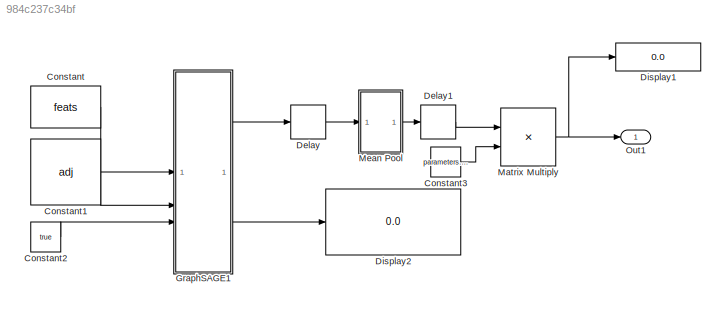
MODEL slx_984c237c34bf
KIND model
CONFIG AbsTol = auto
CONFIG EnableMultiTasking = off
CONFIG FixedStep = 1
CONFIG MaxStep = 1
CONFIG MinStep = auto
CONFIG RelTol = 1e-3
CONFIG SampleTimeConstraint = Unconstrained
CONFIG SolverName = FixedStepDiscrete
CONFIG StartTime = 0.0
CONFIG StopTime = 10
BLOCK [Constant] Constant
  OutDataTypeStr = fixdt(1,16,10)
  SampleTime = -1
  Value = feats
  VectorParams1D = off
BLOCK [Constant] Constant1
  OutDataTypeStr = boolean
  SampleTime = -1
  Value = adj
BLOCK [Constant] Constant2
  OutDataTypeStr = boolean
  SampleTime = -1
  Value = true
BLOCK [Constant] Constant3
  SampleTime = -1
  Value = parameters.classifier.weights
BLOCK [Delay] Delay
  DelayLength = 1
  InputPortMap = u0
BLOCK [Delay] Delay1
  DelayLength = 1
  InputPortMap = u0
BLOCK [Display] Display1
  Decimation = 1
BLOCK [Display] Display2
  Decimation = 1
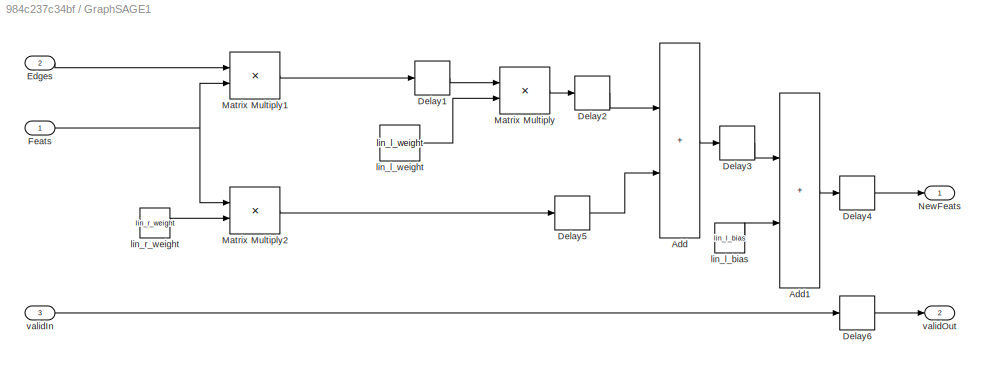
BLOCK [SubSystem] GraphSAGE1
BLOCK [Sum] GraphSAGE1/Add
  IconShape = rectangular
  OutDataTypeStr = Inherit: Same as first input
BLOCK [Sum] GraphSAGE1/Add1
  IconShape = rectangular
  OutDataTypeStr = Inherit: Same as first input
BLOCK [Delay] GraphSAGE1/Delay1
  DelayLength = 1
  InputPortMap = u0
BLOCK [Delay] GraphSAGE1/Delay2
  DelayLength = 1
  InputPortMap = u0
BLOCK [Delay] GraphSAGE1/Delay3
  DelayLength = 1
  InputPortMap = u0
BLOCK [Delay] GraphSAGE1/Delay4
  DelayLength = 1
  InputPortMap = u0
BLOCK [Delay] GraphSAGE1/Delay5
  InputPortMap = u0
BLOCK [Delay] GraphSAGE1/Delay6
  DelayLength = 4
  InputPortMap = u0
BLOCK [Inport] GraphSAGE1/Edges
  Port = 2
BLOCK [Inport] GraphSAGE1/Feats
BLOCK [Product] GraphSAGE1/Matrix Multiply
  Multiplication = Matrix(*)
  OutDataTypeStr = Inherit: Same as first input
BLOCK [Product] GraphSAGE1/Matrix Multiply1
  Multiplication = Matrix(*)
  OutDataTypeStr = fixdt(1,14,10)
BLOCK [Product] GraphSAGE1/Matrix Multiply2
  Multiplication = Matrix(*)
  OutDataTypeStr = Inherit: Same as first input
BLOCK [Outport] GraphSAGE1/NewFeats
BLOCK [Constant] GraphSAGE1/lin_l_bias
  OutDataTypeStr = fixdt(1,16,10)
  SampleTime = -1
  Value = lin_l_bias
  VectorParams1D = off
BLOCK [Constant] GraphSAGE1/lin_l_weight
  OutDataTypeStr = fixdt(1,16,10)
  SampleTime = -1
  Value = lin_l_weight
  VectorParams1D = off
BLOCK [Constant] GraphSAGE1/lin_r_weight
  OutDataTypeStr = fixdt(1,16,10)
  SampleTime = -1
  Value = lin_r_weight
  VectorParams1D = off
BLOCK [Inport] GraphSAGE1/validIn
  Port = 3
BLOCK [Outport] GraphSAGE1/validOut
  Port = 2
BLOCK [Product] Matrix Multiply
  Multiplication = Matrix(*)
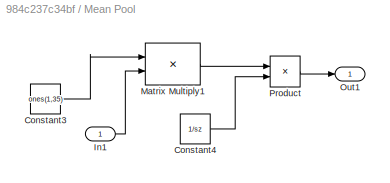
BLOCK [SubSystem] Mean Pool
BLOCK [Constant] Mean Pool/Constant3
  OutDataTypeStr = boolean
  SampleTime = -1
  Value = ones(1,35)
  VectorParams1D = off
BLOCK [Constant] Mean Pool/Constant4
  OutDataTypeStr = fixdt(1,13,10)
  SampleTime = -1
  Value = 1/sz
BLOCK [Inport] Mean Pool/In1
BLOCK [Product] Mean Pool/Matrix Multiply1
  Multiplication = Matrix(*)
BLOCK [Outport] Mean Pool/Out1
BLOCK [Product] Mean Pool/Product
  OutDataTypeStr = Inherit: Same as first input
BLOCK [Outport] Out1
LINE Constant1:1 -> GraphSAGE1:2
LINE Constant2:1 -> GraphSAGE1:3
LINE Constant3:1 -> Matrix Multiply:2
LINE Constant:1 -> GraphSAGE1:1
LINE Delay1:1 -> Matrix Multiply:1
LINE Delay:1 -> Mean Pool:1
LINE GraphSAGE1/Add1:1 -> GraphSAGE1/Delay4:1
LINE GraphSAGE1/Add:1 -> GraphSAGE1/Delay3:1
LINE GraphSAGE1/Delay1:1 -> GraphSAGE1/Matrix Multiply:1
LINE GraphSAGE1/Delay2:1 -> GraphSAGE1/Add:1
LINE GraphSAGE1/Delay3:1 -> GraphSAGE1/Add1:1
LINE GraphSAGE1/Delay4:1 -> GraphSAGE1/NewFeats:1
LINE GraphSAGE1/Delay5:1 -> GraphSAGE1/Add:2
LINE GraphSAGE1/Delay6:1 -> GraphSAGE1/validOut:1
LINE GraphSAGE1/Edges:1 -> GraphSAGE1/Matrix Multiply1:1
NET GraphSAGE1/Feats:1 -> GraphSAGE1/Matrix Multiply1:2, GraphSAGE1/Matrix Multiply2:1
LINE GraphSAGE1/Matrix Multiply1:1 -> GraphSAGE1/Delay1:1
LINE GraphSAGE1/Matrix Multiply2:1 -> GraphSAGE1/Delay5:1
LINE GraphSAGE1/Matrix Multiply:1 -> GraphSAGE1/Delay2:1
LINE GraphSAGE1/lin_l_bias:1 -> GraphSAGE1/Add1:2
LINE GraphSAGE1/lin_l_weight:1 -> GraphSAGE1/Matrix Multiply:2
LINE GraphSAGE1/lin_r_weight:1 -> GraphSAGE1/Matrix Multiply2:2
LINE GraphSAGE1/validIn:1 -> GraphSAGE1/Delay6:1
LINE GraphSAGE1:1 -> Delay:1
LINE GraphSAGE1:2 -> Display2:1
NET Matrix Multiply:1 -> Display1:1, Out1:1
LINE Mean Pool/Constant3:1 -> Mean Pool/Matrix Multiply1:1
LINE Mean Pool/Constant4:1 -> Mean Pool/Product:2
LINE Mean Pool/In1:1 -> Mean Pool/Matrix Multiply1:2
LINE Mean Pool/Matrix Multiply1:1 -> Mean Pool/Product:1
LINE Mean Pool/Product:1 -> Mean Pool/Out1:1
LINE Mean Pool:1 -> Delay1:1
note: NET lines group one-source signal fan-out (src -> all destinations, sorted); 1:1 wires keep LINE
